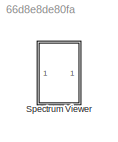
MODEL slx_66d8e8de80fa
KIND model
CONFIG AbsTol = auto
CONFIG EnableMultiTasking = on
CONFIG FixedStep = auto
CONFIG MaxStep = auto
CONFIG MinStep = auto
CONFIG RelTol = 1e-3
CONFIG SampleTimeConstraint = Unconstrained
CONFIG SolverName = ode45
CONFIG StartTime = 0.0
CONFIG StopTime = 10.0
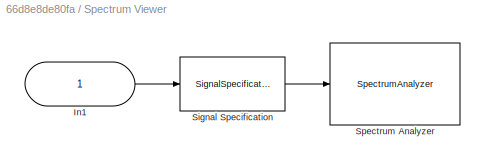
BLOCK [SubSystem] Spectrum Viewer
BLOCK [Inport] Spectrum Viewer/In1
BLOCK [SignalSpecification] Spectrum Viewer/Signal Specification
  SampleTime = 1/16e4
BLOCK [SpectrumAnalyzer] Spectrum Viewer/Spectrum Analyzer
  AllowFFTLengthLessThanSamplesPerUpdate = on
  AveragingMethod = Running
  AxesScaling = Manual
  DefaultConfigurationName = spbscopes.SpectrumAnalyzerBlockCfg
  FrequencyInputRBWFromPort = 0
  FrequencyInputRBWPort = 0
  FrequencyResolutionMethod = Window length
  FrequencySpan = Span and center frequency
  FrequencyVectorFromPort = 0
  FrequencyVectorPort = 0
  GraphicalSettings = {"GraphicalSettings":{"SpectralMask":{"CustomReferenceLevel":"0","EnabledMasks":"None","LowerMask":"-Inf","MaskFrequencyOffset":"0","ReferenceLevel":"Custom","SelectedChannel":"1","UpperMask":"Inf"},"Style":{"AxesColor":"[0 0 0]","LabelsColor":"[0.686274509803922 0.686274509803922 0.686274509803922]","Measurements":"struct","OnceAtStop":"false","ShowSettingsDialog":"true","Version":"2021a","Visibl...<+34ch>
  IsFrequencyInputMode = 0
  Method = Welch
  OverlapPercent = 6.25
  ScopeFrameLocation = window
  ScopeSpecificationString = spbscopes.SpectrumAnalyzerBlockCfg('CurrentConfiguration', extmgr.ConfigurationSet(extmgr.Configuration('Core','General UI',true),extmgr.Configuration('Core','Source UI',true),extmgr.Configuration('Sources','WiredSimulink',true),extmgr.Configuration('Sources','SimulinkEvent',false),extmgr.Configuration('Sources','Simulink',false),extmgr.Configuration('Sources','File',false),extmgr.Configuration('S...<+2845ch>
  SpectralAverages = 200
  Visible = on
  WasSavedAsWebScope = on
  WindowPosition = [240.000000,-31.000000,800.000000,782.000000,]
  YLimits = [-40,25]
LINE Spectrum Viewer/In1:1 -> Spectrum Viewer/Signal Specification:1
LINE Spectrum Viewer/Signal Specification:1 -> Spectrum Viewer/Spectrum Analyzer:1
